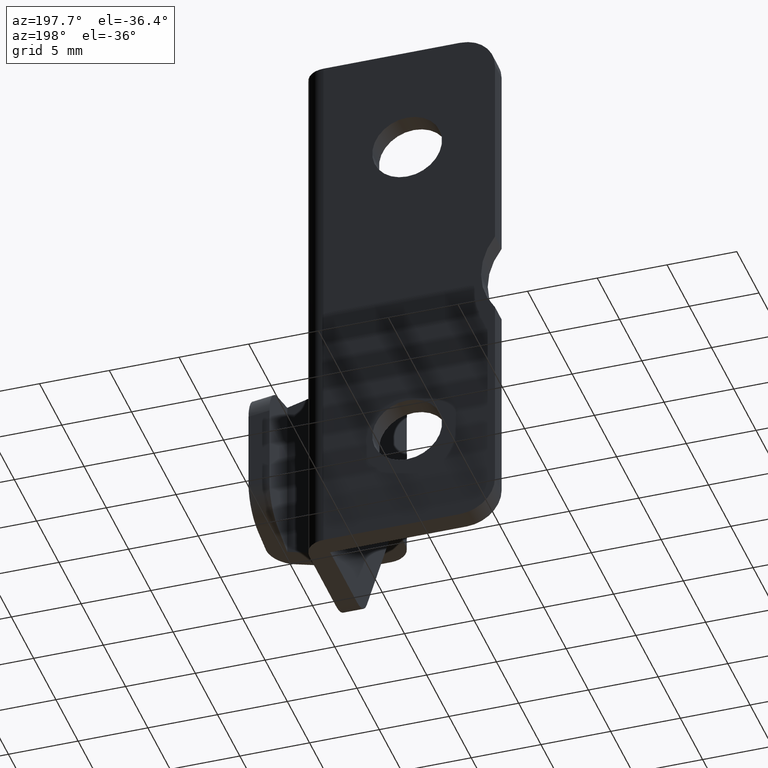
[diagram: clean part render]
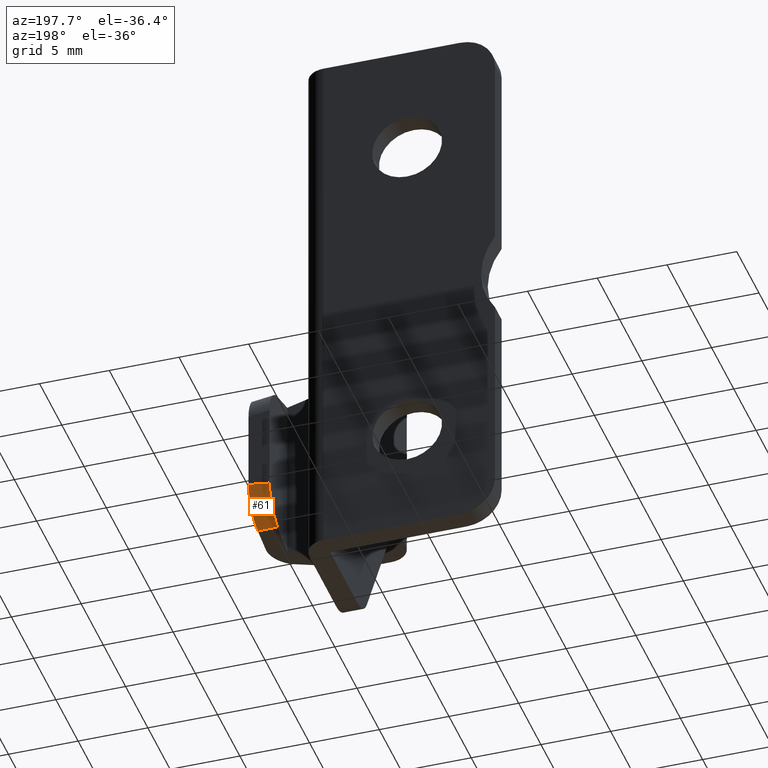
[diagram: same view with one face highlighted and labeled with its STEP entity id]
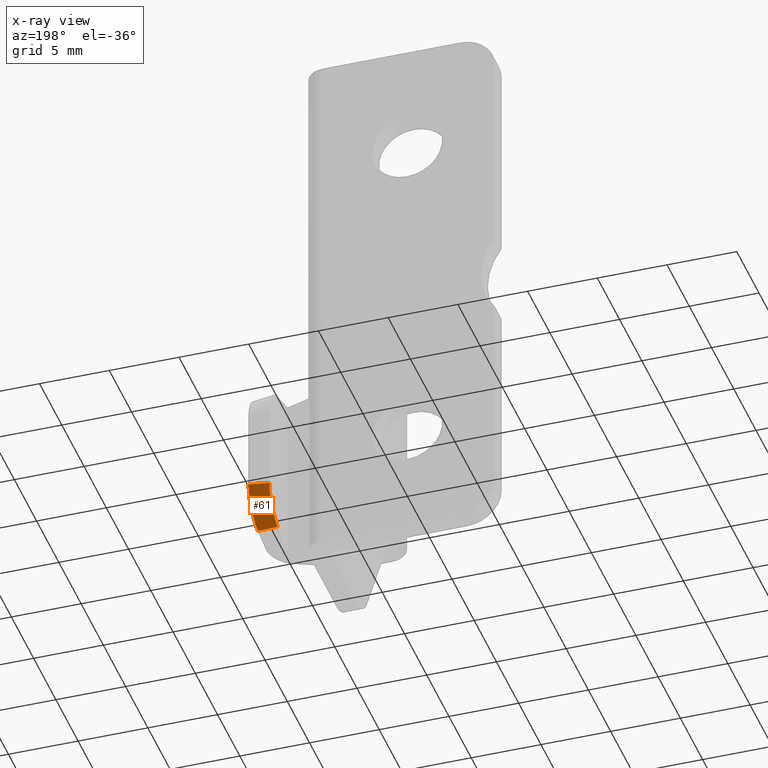
[diagram: x-ray of the same camera — body ghosted, the highlighted face saturated]
A machine part, auxiliary view. The second image highlights one B-rep face of the part: STEP entity #61.
The next image is the same camera in x-ray: the body ghosted, the highlighted face saturated — about 0% of this face is hidden behind the body in this view.
In plain terms, the highlighted face is a freeform B-spline surface patch.
Its self-contained STEP definition (entity closure, byte-faithful):
#61=ADVANCED_FACE('',(#290),#289,.T.);
#289=( BOUNDED_SURFACE() B_SPLINE_SURFACE( 3,2,((#546,#547,#548),(#549,#550,#551),(#552,#553,#554),(#555,#556,#557)), .UNSPECIFIED.,.F.,.F.,.F.) B_SPLINE_SURFACE_WITH_KNOTS((4,4),(3,3),(5.57073785120E-03,7.41411256396E-03),(0.00000000000E+00,1.00000000000E+00), .UNSPECIFIED. ) GEOMETRIC_REPRESENTATION_ITEM() RATIONAL_B_SPLINE_SURFACE(((1.00000000000E+00,7.56468127770E-01,1.00000000000E+00),(1.00000000000E+00,7.70323255458E-01,1.00000000000E+00),(1.00000000000E+00,7.83465790847E-01,1.00000000000E+00),(1.00000000000E+00,7.95720369459E-01,1.00000000000E+00))) REPRESENTATION_ITEM('') SURFACE() );
#290=FACE_OUTER_BOUND('',#558,.T.);
#546=CARTESIAN_POINT('',(2.26742345486E+01,-1.56387798583E+01,-5.31572484816E+00));
#547=CARTESIAN_POINT('',(2.26283521793E+01,-1.35000000000E+01,-5.00680833337E+00));
#548=CARTESIAN_POINT('',(2.23108008857E+01,-1.35000000000E+01,-2.86880106883E+00));
#549=CARTESIAN_POINT('',(2.20466344148E+01,-1.55339868488E+01,-5.39347049410E+00));
#550=CARTESIAN_POINT('',(2.20030639214E+01,-1.35000000000E+01,-5.00781457238E+00));
#551=CARTESIAN_POINT('',(2.17028815605E+01,-1.35000000000E+01,-2.95909335700E+00));
#552=CARTESIAN_POINT('',(2.14177957088E+01,-1.54316766226E+01,-5.45795644765E+00));
#553=CARTESIAN_POINT('',(2.13669906953E+01,-1.35000000000E+01,-5.00815844988E+00));
#554=CARTESIAN_POINT('',(2.10939973803E+01,-1.35000000000E+01,-3.04286647542E+00));
#555=CARTESIAN_POINT('',(2.07888002696E+01,-1.53341454681E+01,-5.51090473405E+00));
#556=CARTESIAN_POINT('',(2.07247636271E+01,-1.35000000000E+01,-5.00815001948E+00));
#557=CARTESIAN_POINT('',(2.04843333251E+01,-1.35000000000E+01,-3.12052032519E+00));
#558=EDGE_LOOP('',(#740,#741,#742,#743));
#740=ORIENTED_EDGE('',*,*,#890,.F.);
#741=ORIENTED_EDGE('',*,*,#819,.F.);
#742=ORIENTED_EDGE('',*,*,#891,.F.);
#743=ORIENTED_EDGE('',*,*,#892,.F.);
#819=EDGE_CURVE('',#937,#945,#946,.T.);
#890=EDGE_CURVE('',#945,#1422,#1423,.T.);
#891=EDGE_CURVE('',#1429,#937,#1430,.T.);
#892=EDGE_CURVE('',#1422,#1429,#1436,.T.);
#937=VERTEX_POINT('',#1588);
#945=VERTEX_POINT('',#1593);
#946=(BOUNDED_CURVE() B_SPLINE_CURVE(3,(#1594,#1595,#1596,#1597),.UNSPECIFIED.,.F.,.F.) B_SPLINE_CURVE_WITH_KNOTS((4,4),(-5.99999999987E-08,1.52654263310E-03),.UNSPECIFIED.) CURVE() GEOMETRIC_REPRESENTATION_ITEM() RATIONAL_B_SPLINE_CURVE((1.00000000000E+00,1.00000000000E+00,1.00000000000E+00,1.00000000000E+00)) REPRESENTATION_ITEM('') );
#1422=VERTEX_POINT('',#1880);
#1423=(BOUNDED_CURVE() B_SPLINE_CURVE(3,(#1881,#1882,#1883,#1884,#1885,#1886,#1887,#1888,#1889,#1890,#1891,#1892,#1893,#1894),.UNSPECIFIED.,.F.,.F.) B_SPLINE_CURVE_WITH_KNOTS((4,2,2,2,2,2,4),(0.00000000000E+00,8.76091521893E-04,1.31413728284E-03,1.75218304379E-03,2.19022880473E-03,2.62827456568E-03,3.50436608757E-03),.UNSPECIFIED.) CURVE() GEOMETRIC_REPRESENTATION_ITEM() RATIONAL_B_SPLINE_CURVE((1.00000000000E+00,1.00000000000E+00,1.00000000000E+00,1.00000000000E+00,1.00000000000E+00,1.00000000000E+00,1.00000000000E+00,1.00000000000E+00,1.00000000000E+00,1.00000000000E+00,1.00000000000E+00,1.00000000000E+00,1.00000000000E+00,1.00000000000E+00)) REPRESENTATION_ITEM('') );
#1429=VERTEX_POINT('',#1895);
#1430=(BOUNDED_CURVE() B_SPLINE_CURVE(3,(#1896,#1897,#1898,#1899,#1900,#1901,#1902,#1903,#1904,#1905,#1906,#1907),.UNSPECIFIED.,.F.,.F.) B_SPLINE_CURVE_WITH_KNOTS((4,2,2,2,2,4),(0.00000000000E+00,8.13406581266E-04,1.62681316253E-03,2.44021974380E-03,2.84692303443E-03,3.25362632506E-03),.UNSPECIFIED.) CURVE() GEOMETRIC_REPRESENTATION_ITEM() RATIONAL_B_SPLINE_CURVE((1.00000000000E+00,1.00000000000E+00,1.00000000000E+00,1.00000000000E+00,1.00000000000E+00,1.00000000000E+00,1.00000000000E+00,1.00000000000E+00,1.00000000000E+00,1.00000000000E+00,1.00000000000E+00,1.00000000000E+00)) REPRESENTATION_ITEM('') );
#1436=(BOUNDED_CURVE() B_SPLINE_CURVE(3,(#1908,#1909,#1910,#1911,#1912,#1913,#1914,#1915,#1916,#1917,#1918,#1919,#1920),.UNSPECIFIED.,.F.,.F.) B_SPLINE_CURVE_WITH_KNOTS((4,3,3,3,4),(0.00000000000E+00,1.11012766566E-04,7.94519280862E-04,1.24980621874E-03,1.51456204572E-03),.UNSPECIFIED.) CURVE() GEOMETRIC_REPRESENTATION_ITEM() RATIONAL_B_SPLINE_CURVE((1.00000000000E+00,1.00000000000E+00,1.00000000000E+00,1.00000000000E+00,1.00000000000E+00,1.00000000000E+00,1.00000000000E+00,1.00000000000E+00,1.00000000000E+00,1.00000000000E+00,1.00000000000E+00,1.00000000000E+00,1.00000000000E+00)) REPRESENTATION_ITEM('') );
#1588=CARTESIAN_POINT('',(2.07999880000E+01,-1.53358807201E+01,-5.50996175126E+00));
#1593=CARTESIAN_POINT('',(2.22999880000E+01,-1.55766201433E+01,-5.36051883085E+00));
#1594=CARTESIAN_POINT('',(2.07999880000E+01,-1.53358807201E+01,-5.50996175126E+00));
#1595=CARTESIAN_POINT('',(2.13010971138E+01,-1.54136202067E+01,-5.46767730929E+00));
#1596=CARTESIAN_POINT('',(2.18011564390E+01,-1.54942265155E+01,-5.41815956417E+00));
#1597=CARTESIAN_POINT('',(2.22999880000E+01,-1.55766201433E+01,-5.36051883085E+00));
#1880=CARTESIAN_POINT('',(2.22999880000E+01,-1.35000000000E+01,-2.87040637198E+00));
#1881=CARTESIAN_POINT('',(2.22999880000E+01,-1.55766201433E+01,-5.36051883085E+00));
#1882=CARTESIAN_POINT('',(2.22999880000E+01,-1.52847236514E+01,-5.30984222629E+00));
#1883=CARTESIAN_POINT('',(2.22999880000E+01,-1.50089887736E+01,-5.20911096432E+00));
#1884=CARTESIAN_POINT('',(2.22999880000E+01,-1.46258081889E+01,-4.98641918493E+00));
#1885=CARTESIAN_POINT('',(2.22999880000E+01,-1.45063455098E+01,-4.90192444187E+00));
#1886=CARTESIAN_POINT('',(2.22999880000E+01,-1.42833212709E+01,-4.71318569722E+00));
#1887=CARTESIAN_POINT('',(2.22999880000E+01,-1.41790222796E+01,-4.60801605314E+00));
#1888=CARTESIAN_POINT('',(2.22999880000E+01,-1.39907306798E+01,-4.38124810939E+00));
#1889=CARTESIAN_POINT('',(2.22999880000E+01,-1.39075653278E+01,-4.26100393924E+00));
#1890=CARTESIAN_POINT('',(2.22999880000E+01,-1.37625435611E+01,-4.00720252331E+00));
#1891=CARTESIAN_POINT('',(2.22999880000E+01,-1.37002584336E+01,-3.87230984578E+00));
#1892=CARTESIAN_POINT('',(2.22999880000E+01,-1.35508892501E+01,-3.45706309077E+00));
#1893=CARTESIAN_POINT('',(2.22999880000E+01,-1.35000000000E+01,-3.16658163067E+00));
#1894=CARTESIAN_POINT('',(2.22999880000E+01,-1.35000000000E+01,-2.87040637198E+00));
#1895=CARTESIAN_POINT('',(2.07999880000E+01,-1.35000000000E+01,-3.07975833894E+00));
#1896=CARTESIAN_POINT('',(2.07999880000E+01,-1.35000000000E+01,-3.07975833894E+00));
#1897=CARTESIAN_POINT('',(2.07999880000E+01,-1.35000000000E+01,-3.35478345046E+00));
#1898=CARTESIAN_POINT('',(2.07999880000E+01,-1.35434572549E+01,-3.62242122921E+00));
#1899=CARTESIAN_POINT('',(2.07999880000E+01,-1.37169031090E+01,-4.14298725577E+00));
#1900=CARTESIAN_POINT('',(2.07999880000E+01,-1.38434736712E+01,-4.38429900276E+00));
#1901=CARTESIAN_POINT('',(2.07999880000E+01,-1.41725554902E+01,-4.82182340423E+00));
#1902=CARTESIAN_POINT('',(2.07999880000E+01,-1.43703366576E+01,-5.01108551042E+00));
#1903=CARTESIAN_POINT('',(2.07999880000E+01,-1.47085469421E+01,-5.24256171966E+00));
#1904=CARTESIAN_POINT('',(2.07999880000E+01,-1.48284933022E+01,-5.31089067517E+00));
#1905=CARTESIAN_POINT('',(2.07999880000E+01,-1.50754324528E+01,-5.42584001343E+00));
#1906=CARTESIAN_POINT('',(2.07999880000E+01,-1.52033566061E+01,-5.47314940274E+00));
#1907=CARTESIAN_POINT('',(2.07999880000E+01,-1.53358807201E+01,-5.50996175126E+00));
#1908=CARTESIAN_POINT('',(2.22999880000E+01,-1.35000000000E+01,-2.87040637198E+00));
#1909=CARTESIAN_POINT('',(2.22633845857E+01,-1.35000000000E+01,-2.87583822139E+00));
#1910=CARTESIAN_POINT('',(2.22267776717E+01,-1.35000000000E+01,-2.88124653918E+00));
#1911=CARTESIAN_POINT('',(2.21901673119E+01,-1.35000000000E+01,-2.88663137754E+00));
#1912=CARTESIAN_POINT('',(2.19647587163E+01,-1.35000000000E+01,-2.91978562292E+00));
#1913=CARTESIAN_POINT('',(2.17392174453E+01,-1.35000000000E+01,-2.95204958019E+00));
#1914=CARTESIAN_POINT('',(2.15135563452E+01,-1.35000000000E+01,-2.98343917732E+00));
#1915=CARTESIAN_POINT('',(2.13632417654E+01,-1.35000000000E+01,-3.00434802736E+00));
#1916=CARTESIAN_POINT('',(2.12128727722E+01,-1.35000000000E+01,-3.02486923689E+00));
#1917=CARTESIAN_POINT('',(2.10624532162E+01,-1.35000000000E+01,-3.04500900009E+00));
#1918=CARTESIAN_POINT('',(2.09749819159E+01,-1.35000000000E+01,-3.05672058417E+00));
#1919=CARTESIAN_POINT('',(2.08874932580E+01,-1.35000000000E+01,-3.06830323479E+00));
#1920=CARTESIAN_POINT('',(2.07999880000E+01,-1.35000000000E+01,-3.07975833894E+00));